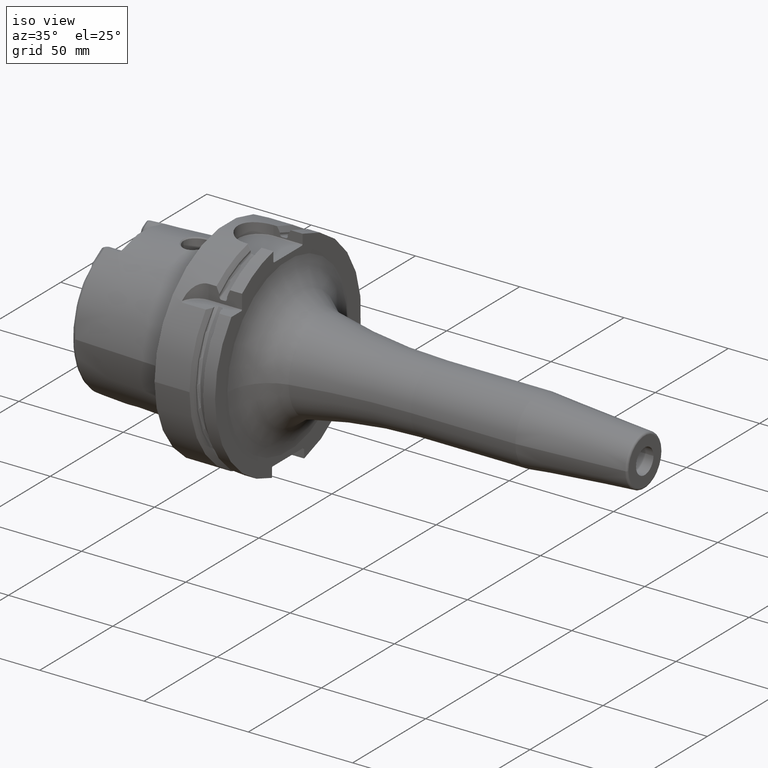
[diagram: clean part render]
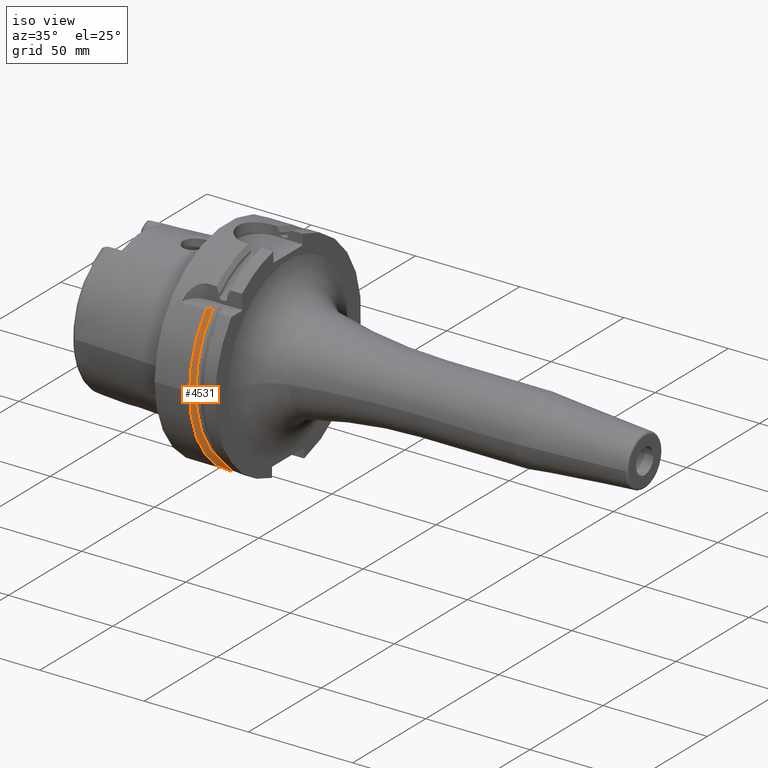
[diagram: same view with one face highlighted and labeled with its STEP entity id]
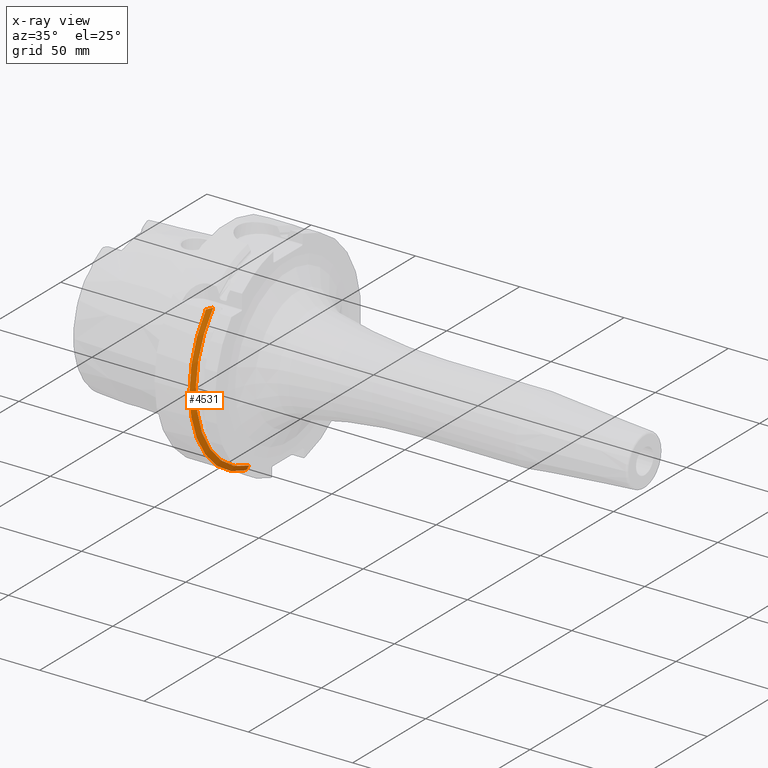
[diagram: x-ray of the same camera — body ghosted, the highlighted face saturated]
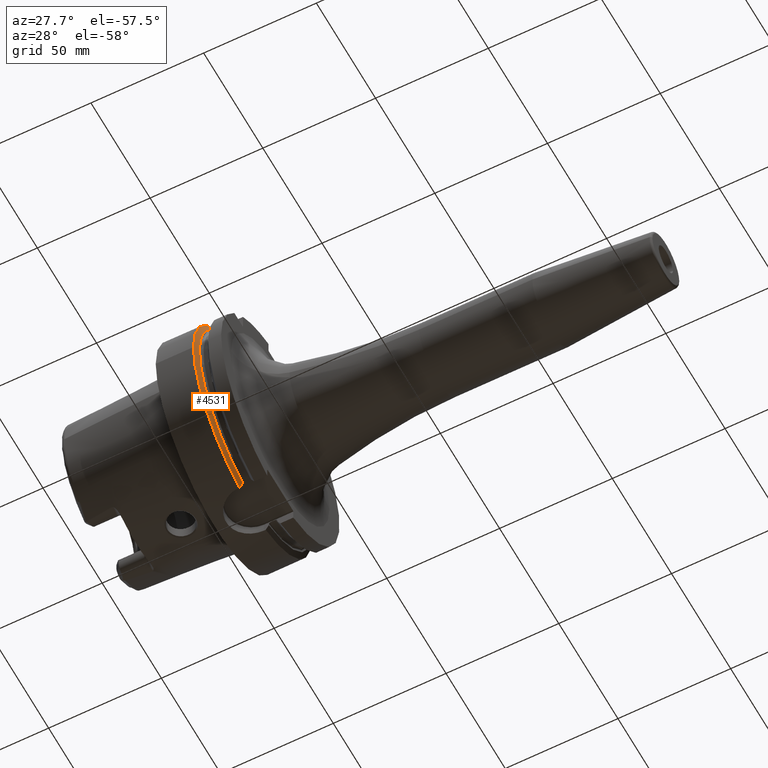
[diagram: same view with one face highlighted and labeled with its STEP entity id]
A machine part, iso view. The second image highlights one B-rep face of the part: STEP entity #4531.
The next image is the same camera in x-ray: the body ghosted, the highlighted face saturated — about 0% of this face is hidden behind the body in this view.
A second angle (auxiliary view) of the same face is appended — the face is thin or edge-on in the first view.
In plain terms, the highlighted conical surface has half-angle 60 deg.
Its self-contained STEP definition (entity closure, byte-faithful):
#946=CARTESIAN_POINT('',(1.675240473581E1,0.E0,0.E0));
#947=DIRECTION('',(1.E0,0.E0,0.E0));
#948=DIRECTION('',(0.E0,-7.765951326142E-1,6.3E-1));
#949=AXIS2_PLACEMENT_3D('',#946,#947,#948);
#1202=CARTESIAN_POINT('',(1.675240473581E1,0.E0,0.E0));
#1203=DIRECTION('',(1.E0,0.E0,0.E0));
#1204=DIRECTION('',(0.E0,-1.E0,0.E0));
#1205=AXIS2_PLACEMENT_3D('',#1202,#1203,#1204);
#1312=CARTESIAN_POINT('',(1.8125E1,-3.571640491003E1,3.15E1));
#1313=CARTESIAN_POINT('',(1.798074425159E1,-3.604955434192E1,3.15E1));
#1314=CARTESIAN_POINT('',(1.768677523913E1,-3.672437326077E1,3.15E1));
#1315=CARTESIAN_POINT('',(1.722989798814E1,-3.776083400964E1,3.15E1));
#1316=CARTESIAN_POINT('',(1.691349063877E1,-3.847048452534E1,3.15E1));
#1317=CARTESIAN_POINT('',(1.675240473581E1,-3.882975663071E1,3.15E1));
#1319=CARTESIAN_POINT('',(1.8125E1,0.E0,0.E0));
#1320=DIRECTION('',(1.E0,0.E0,0.E0));
#1321=DIRECTION('',(0.E0,-7.499886285467E-1,6.614507215588E-1));
#1322=AXIS2_PLACEMENT_3D('',#1319,#1320,#1321);
#1324=CARTESIAN_POINT('',(1.8125E1,-1.1E1,-4.633477721644E1));
#1325=CARTESIAN_POINT('',(1.797681299591E1,-1.1E1,-4.659857839127E1));
#1326=CARTESIAN_POINT('',(1.767755818119E1,-1.1E1,-4.713106867413E1));
#1327=CARTESIAN_POINT('',(1.722011036236E1,-1.1E1,-4.794432689775E1));
#1328=CARTESIAN_POINT('',(1.690927619315E1,-1.1E1,-4.849646015371E1));
#1329=CARTESIAN_POINT('',(1.675240473581E1,-1.1E1,-4.877499359303E1));
#2932=CARTESIAN_POINT('',(1.675240473581E1,-5.E1,-1.020538999289E-14));
#2933=VERTEX_POINT('',#2932);
#3023=CARTESIAN_POINT('',(1.675240473581E1,-1.1E1,-4.877499359303E1));
#3025=VERTEX_POINT('',#3023);
#3034=CARTESIAN_POINT('',(1.8125E1,-1.1E1,-4.633477721644E1));
#3036=VERTEX_POINT('',#3034);
#3084=CARTESIAN_POINT('',(1.8125E1,-3.571640491003E1,3.15E1));
#3086=VERTEX_POINT('',#3084);
#3104=VERTEX_POINT('',#1317);
#4518=CARTESIAN_POINT('',(1.743870236790E1,0.E0,0.E0));
#4519=DIRECTION('',(-1.E0,0.E0,0.E0));
#4520=DIRECTION('',(0.E0,1.E0,0.E0));
#4521=AXIS2_PLACEMENT_3D('',#4518,#4519,#4520);
#4522=CONICAL_SURFACE('',#4521,4.881129763210E1,6.E1);
#4523=ORIENTED_EDGE('',*,*,#4302,.F.);
#4525=ORIENTED_EDGE('',*,*,#4524,.T.);
#4526=ORIENTED_EDGE('',*,*,#4472,.T.);
#4527=ORIENTED_EDGE('',*,*,#4370,.F.);
#4528=ORIENTED_EDGE('',*,*,#4166,.F.);
#4529=EDGE_LOOP('',(#4523,#4525,#4526,#4527,#4528));
#4530=FACE_OUTER_BOUND('',#4529,.F.);
#4531=ADVANCED_FACE('',(#4530),#4522,.T.);
#950=CIRCLE('',#949,5.E1);
#1206=CIRCLE('',#1205,5.E1);
#1318=B_SPLINE_CURVE_WITH_KNOTS('',3,(#1312,#1313,#1314,#1315,#1316,#1317),
.UNSPECIFIED.,.F.,.F.,(4,1,1,4),(0.E0,3.333333333333E-1,6.666666666667E-1,1.E0),
.UNSPECIFIED.);
#1323=CIRCLE('',#1322,4.762259526419E1);
#1330=B_SPLINE_CURVE_WITH_KNOTS('',3,(#1324,#1325,#1326,#1327,#1328,#1329),
.UNSPECIFIED.,.F.,.F.,(4,1,1,4),(0.E0,3.333333333333E-1,6.666666666667E-1,1.E0),
.UNSPECIFIED.);
#4166=EDGE_CURVE('',#3104,#2933,#950,.T.);
#4302=EDGE_CURVE('',#3086,#3104,#1318,.T.);
#4370=EDGE_CURVE('',#2933,#3025,#1206,.T.);
#4472=EDGE_CURVE('',#3036,#3025,#1330,.T.);
#4524=EDGE_CURVE('',#3086,#3036,#1323,.T.);